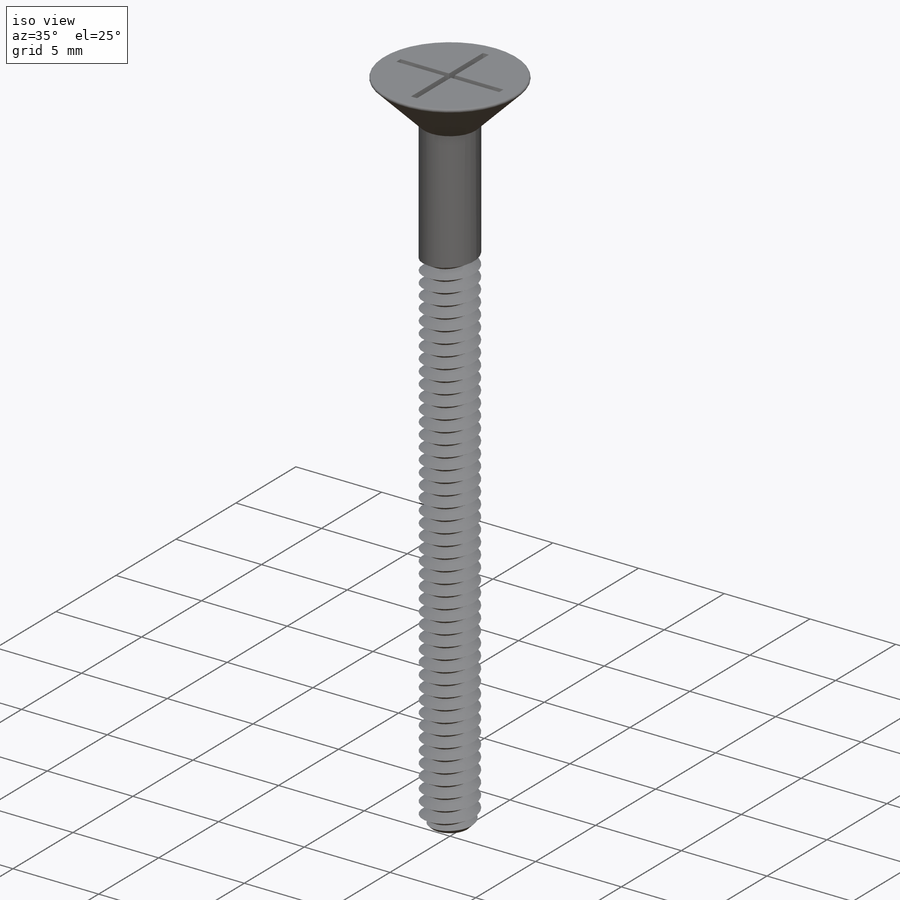
[diagram: iso view]
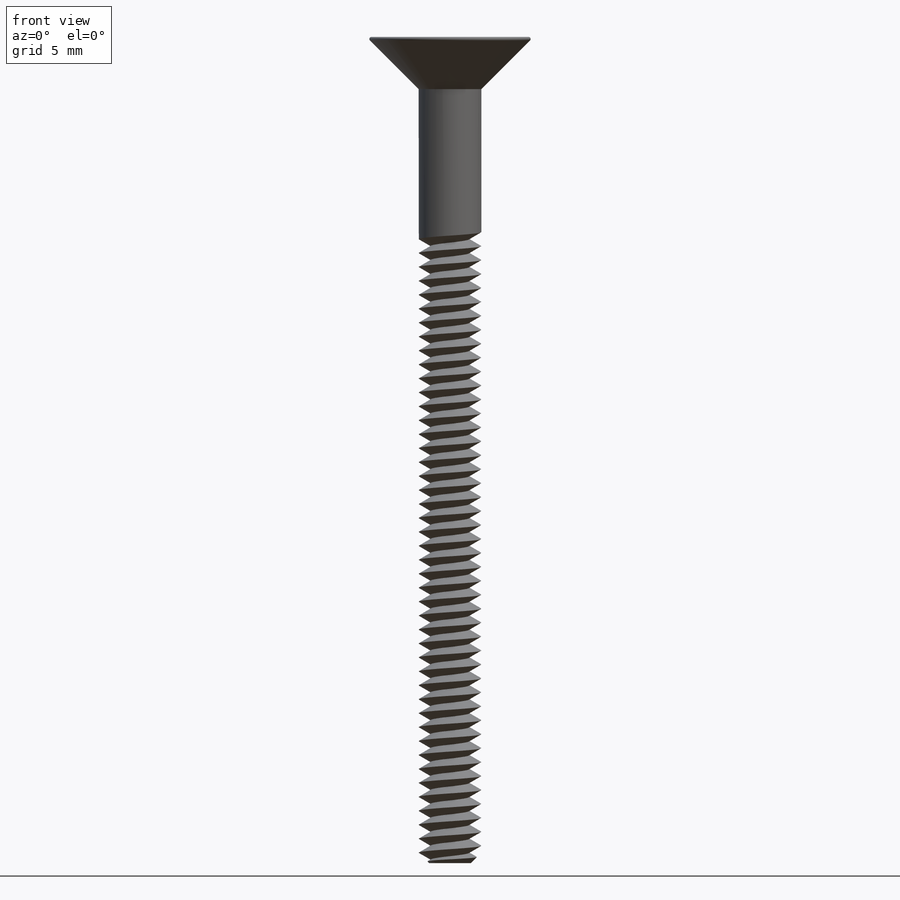
[diagram: front view]
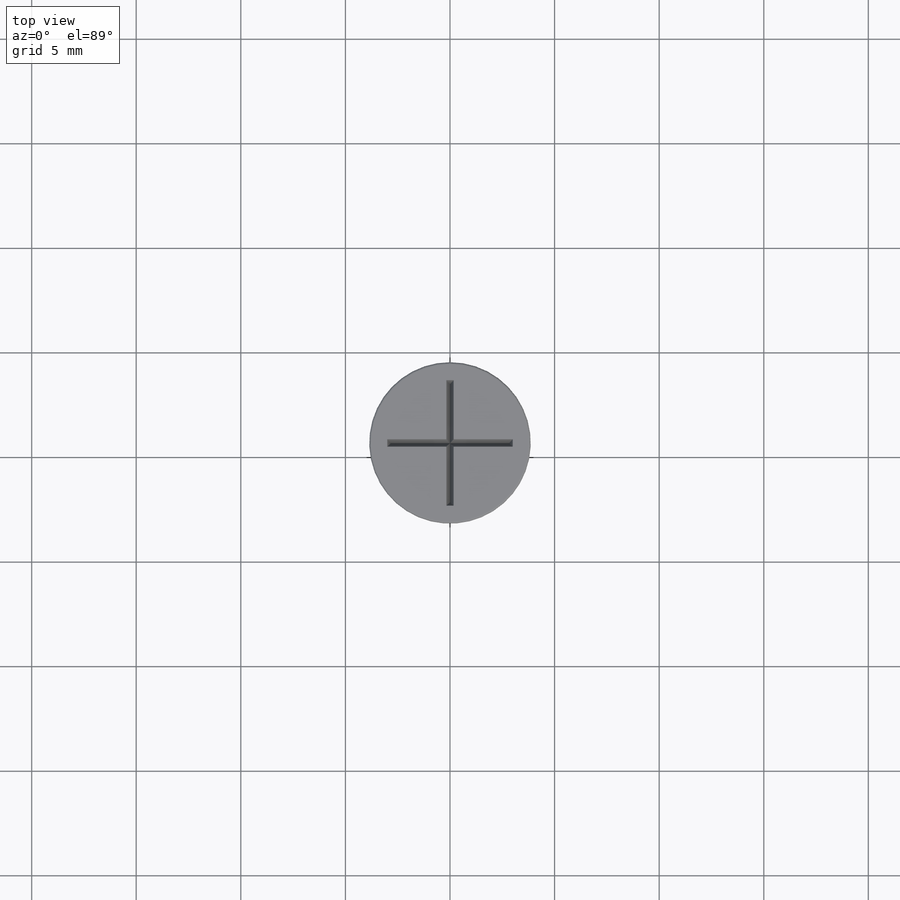
[diagram: top view]
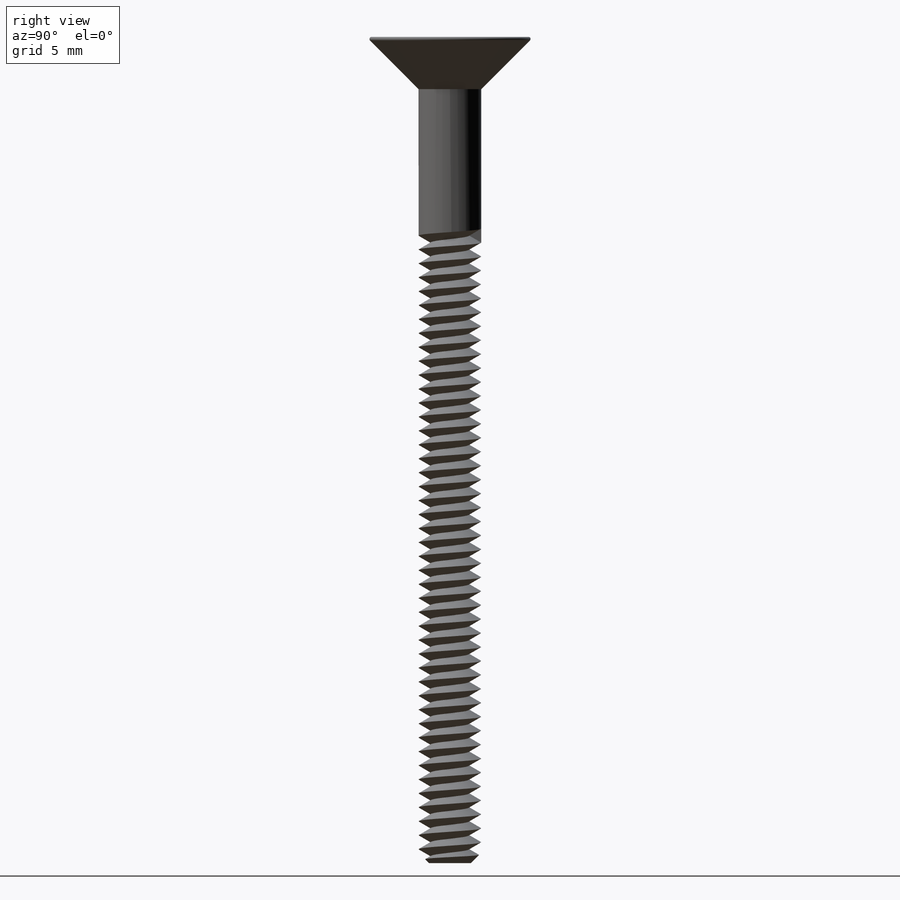
[diagram: right view]
SOLIDWORKS PART (.sldprt)
format: sldprt  version: not decoded by parser v0  size: 619,008 bytes
history: native  units: mm
features: sketch x5, material x1, extrude x1, revolve x1, fillet x1, chamfer x1, helix x1, sweep x1, cut_extrude x1 (+12 scaffold rows collapsed)
feature tree (25):
  scaffold x12  (default folders/planes/origin — collapsed)
  material  "Material <not specified>"
  sketch  "Sketch1"  dims[D1=~9.013429mm]
  extrude  "Boss-Extrude1"  Depth=37mm
  sketch  "Sketch2"  dims[c1.D1=3.0mm c2.D1=135.0deg c3.D1=1.5mm c4.D1=45.0deg c4.D2=2.5mm]
  revolve  "Revolve2"  Angle=360deg
  fillet  "Fillet1"  Radius=0.1mm
  chamfer  "Chamfer1"  Distance=0.5mm Angle=45deg
  sketch  "Sketch4"  dims[D1=~1.938837mm]
  helix  "Helix/Spiral1"  Pitch=30mm
  sketch  "Sketch7"  dims[D1=1.0mm]
  sweep  "Cut-Sweep1"
  sketch  "Sketch8"  dims[D1=0.35mm D2=0.35mm D3=6.0mm D4=6.0mm]
  cut_extrude  "Cut-Extrude1"  Depth=2mm
decode coverage: 11 of 12 modeling features carry decoded parameters
note: ~ marks probable driven/reference dimensions
note: suppression state not decoded; provenance and decode notes live in map.json
